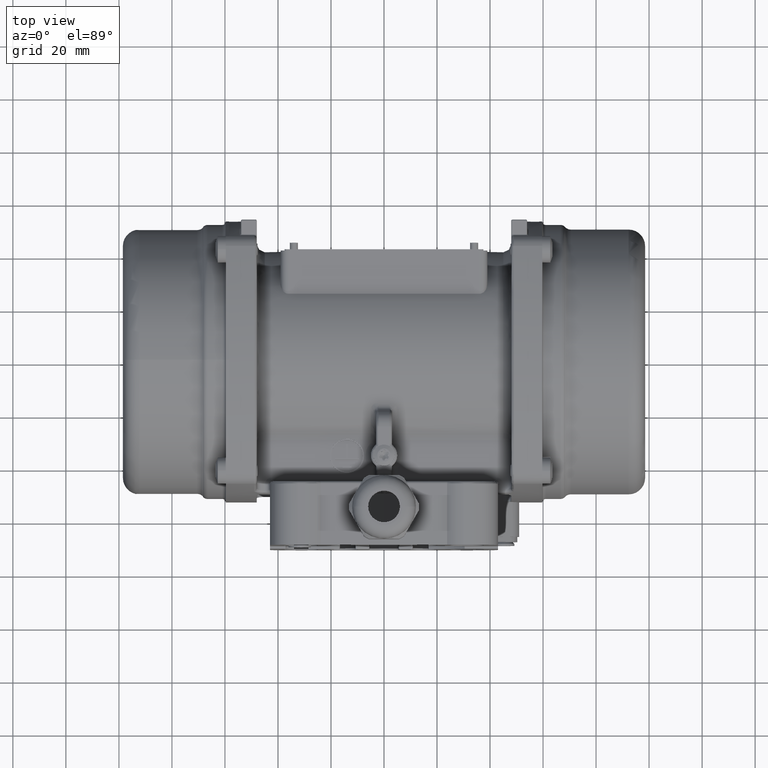
[diagram: clean part render]
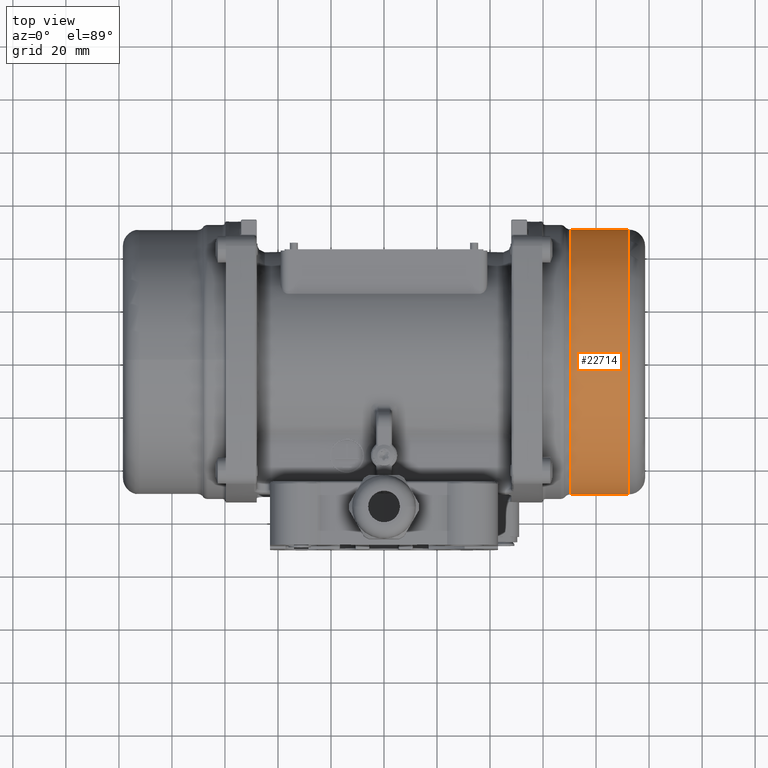
[diagram: same view with one face highlighted and labeled with its STEP entity id]
A machine part, top view. The second image highlights one B-rep face of the part: STEP entity #22714.
In plain terms, the highlighted cylindrical surface (partial cylindrical patch) has radius 49.95 mm, axis along (-1, -0, 0).
Its self-contained STEP definition (entity closure, byte-faithful):
#3767 = CARTESIAN_POINT ( 'NONE',  ( 70.48969696196699900, 5.676473198667389600E-016, 0.0000000000000000000 ) ) ;
#9987 = DIRECTION ( 'NONE',  ( -1.000000000000000000, -4.734459275054199100E-017, 0.0000000000000000000 ) ) ;
#14380 = CIRCLE ( 'NONE', #108039, 49.95000000000000300 ) ;
#17478 = DIRECTION ( 'NONE',  ( 0.0000000000000000000, -1.000000000000000000, 0.0000000000000000000 ) ) ;
#18486 = ORIENTED_EDGE ( 'NONE', *, *, #110340, .T. ) ;
#20724 = CARTESIAN_POINT ( 'NONE',  ( 70.48969696196699900, -49.95000000000000300, 0.0000000000000000000 ) ) ;
#22714 = ADVANCED_FACE ( 'NONE', ( #57284 ), #56980, .T. ) ;
#23762 = VECTOR ( 'NONE', #95420, 1000.000000000000000 ) ;
#26988 = CARTESIAN_POINT ( 'NONE',  ( 92.29999999999999700, 1.600247234968320000E-015, 0.0000000000000000000 ) ) ;
#29564 = ORIENTED_EDGE ( 'NONE', *, *, #115730, .F. ) ;
#29938 = CARTESIAN_POINT ( 'NONE',  ( 58.50000000000000000, 49.95000000000000300, 6.117110761741029000E-015 ) ) ;
#30758 = AXIS2_PLACEMENT_3D ( 'NONE', #26988, #9987, #17478 ) ;
#35169 = VERTEX_POINT ( 'NONE', #97448 ) ;
#36466 = ORIENTED_EDGE ( 'NONE', *, *, #63905, .T. ) ;
#39909 = LINE ( 'NONE', #29938, #23762 ) ;
#40985 = CARTESIAN_POINT ( 'NONE',  ( 58.50000000000000000, -49.95000000000000300, 0.0000000000000000000 ) ) ;
#49107 = DIRECTION ( 'NONE',  ( 0.0000000000000000000, -1.000000000000000000, 0.0000000000000000000 ) ) ;
#52105 = CARTESIAN_POINT ( 'NONE',  ( 92.29999999999999700, -49.94999999999999600, 0.0000000000000000000 ) ) ;
#54303 = VERTEX_POINT ( 'NONE', #52105 ) ;
#56400 = DIRECTION ( 'NONE',  ( -1.000000000000000000, -4.734459275054199100E-017, 0.0000000000000000000 ) ) ;
#56980 = CYLINDRICAL_SURFACE ( 'NONE', #83987, 49.95000000000000300 ) ;
#57284 = FACE_OUTER_BOUND ( 'NONE', #96672, .T. ) ;
#59038 = CIRCLE ( 'NONE', #30758, 49.95000000000000300 ) ;
#60353 = DIRECTION ( 'NONE',  ( -1.000000000000000000, -4.734459275054199100E-017, 0.0000000000000000000 ) ) ;
#63905 = EDGE_CURVE ( 'NONE', #54303, #35169, #59038, .T. ) ;
#68759 = ORIENTED_EDGE ( 'NONE', *, *, #113675, .F. ) ;
#83987 = AXIS2_PLACEMENT_3D ( 'NONE', #121851, #56400, #94666 ) ;
#84191 = VERTEX_POINT ( 'NONE', #114572 ) ;
#86530 = DIRECTION ( 'NONE',  ( -1.000000000000000000, -4.734459275054199100E-017, 0.0000000000000000000 ) ) ;
#91439 = VERTEX_POINT ( 'NONE', #20724 ) ;
#94666 = DIRECTION ( 'NONE',  ( 0.0000000000000000000, -1.000000000000000000, 0.0000000000000000000 ) ) ;
#95420 = DIRECTION ( 'NONE',  ( -1.000000000000000000, -4.734459275054199100E-017, 0.0000000000000000000 ) ) ;
#96672 = EDGE_LOOP ( 'NONE', ( #36466, #18486, #29564, #68759 ) ) ;
#97448 = CARTESIAN_POINT ( 'NONE',  ( 92.29999999999999700, 49.94999999999999600, 6.117110761741028200E-015 ) ) ;
#98602 = LINE ( 'NONE', #40985, #107359 ) ;
#107359 = VECTOR ( 'NONE', #60353, 1000.000000000000000 ) ;
#108039 = AXIS2_PLACEMENT_3D ( 'NONE', #3767, #86530, #49107 ) ;
#110340 = EDGE_CURVE ( 'NONE', #35169, #84191, #39909, .T. ) ;
#113675 = EDGE_CURVE ( 'NONE', #54303, #91439, #98602, .T. ) ;
#114572 = CARTESIAN_POINT ( 'NONE',  ( 70.48969696196699900, 49.95000000000000300, 6.117110761741029000E-015 ) ) ;
#115730 = EDGE_CURVE ( 'NONE', #91439, #84191, #14380, .T. ) ;
#121851 = CARTESIAN_POINT ( 'NONE',  ( 58.50000000000000000, 0.0000000000000000000, 0.0000000000000000000 ) ) ;